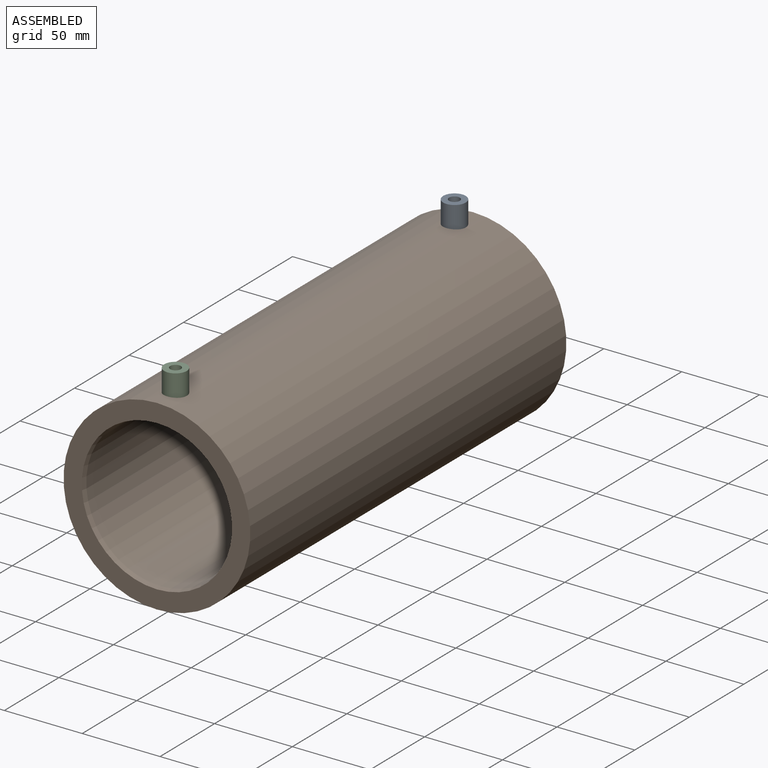
[diagram: assembled view]
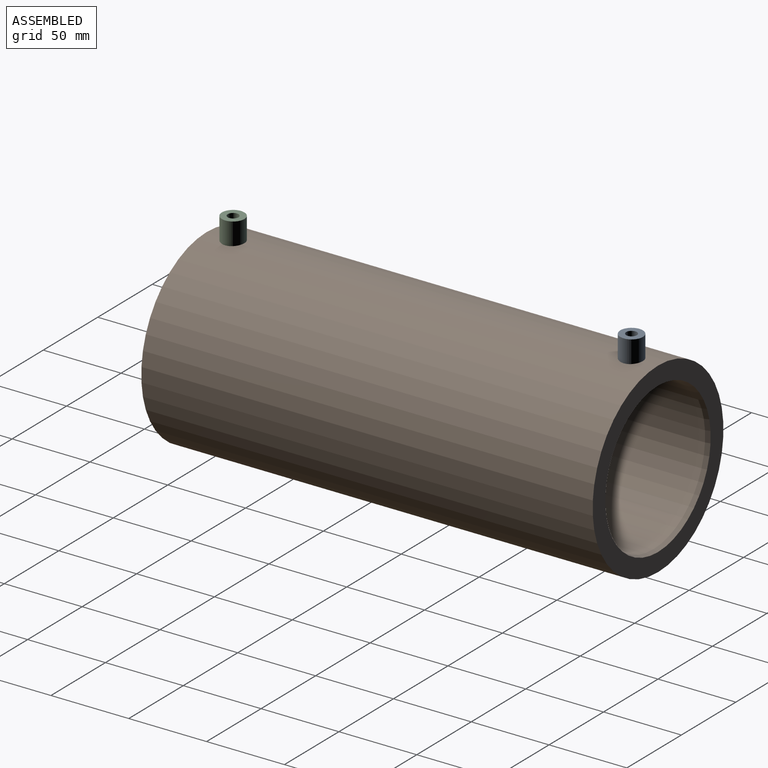
[diagram: assembled view, second angle]
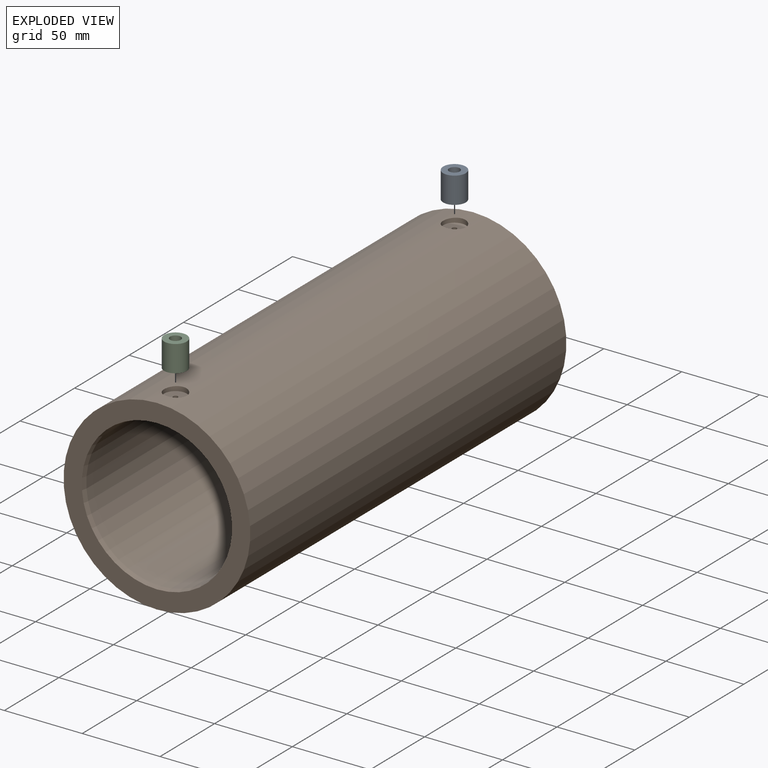
[diagram: exploded view]
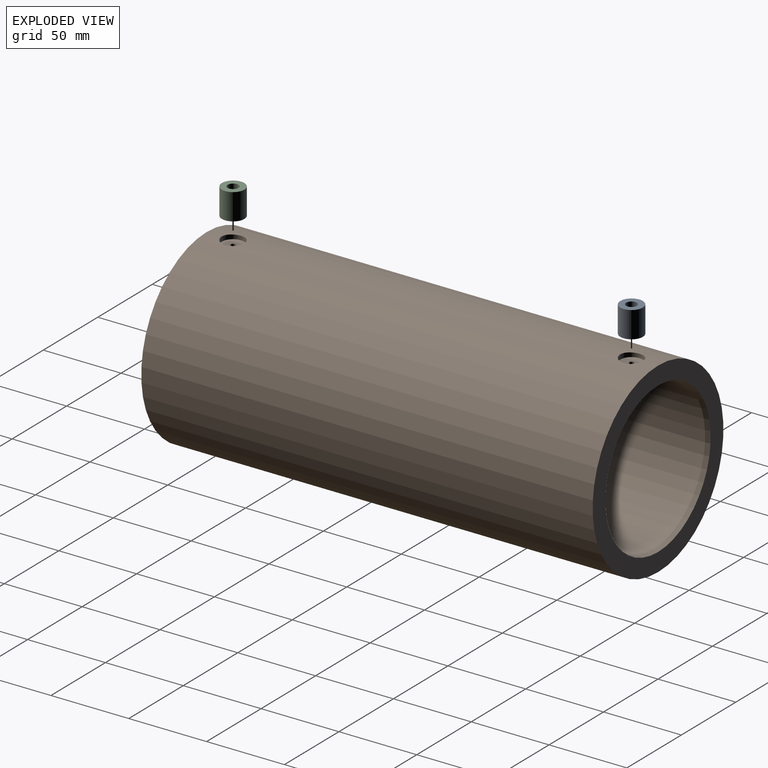
[diagram: exploded view, second angle]
ASSEMBLY  parts=3 mates=2
PART A: 4 faces, bbox 14.5x14.5x17 mm
  f0: cylinder r=7.25mm len=17mm, axis (0,0,-1), area 774.4mm2, adj f1,f2
  f1: plane 14.5x14.5mm, normal (0,0,1), area 127.6mm2, adj f0,f3
  f2: plane 14.5x14.5mm, normal (0,0,-1), area 127.6mm2, adj f0,f3
  f3: cylinder r=3.45mm len=17mm, axis (0,0,1), area 369mm2, adj f1,f2
PART B: 12 faces, bbox 120x290x120 mm
  f0: cylinder r=47.5mm len=284mm, axis (0,-1,0), area 84746mm2, adj f4,f5,f6,f9
  f1: cylinder r=60mm len=290mm, axis (0,-1,0), area 108996.8mm2, adj f2,f3,f8,f11
  f2: plane 120x120mm, normal (0,1,0), area 3979.6mm2, adj f1,f4
  f3: plane 120x120mm, normal (0,-1,0), area 3979.6mm2, adj f1,f5
  f4: cone r=48.3mm half-angle=15deg, axis (0,1,0), area 934.8mm2, adj f0,f2
  f5: cone r=47.5mm half-angle=15deg, axis (0,-1,0), area 934.8mm2, adj f0,f3
  f6: cylinder r=1.5mm len=9.52mm, axis (0,0,1), area 89.6mm2, adj f0,f7
  f7: plane 14.5x14.5mm, normal (0,0,1), area 158.1mm2, adj f6,f8
  f8: cylinder r=7.25mm len=14.5mm, axis (0,0,1), area 126.6mm2, adj f1,f7
  f9: cylinder r=1.5mm len=9.52mm, axis (0,0,1), area 89.6mm2, adj f0,f10
  f10: plane 14.5x14.5mm, normal (0,0,1), area 158.1mm2, adj f9,f11
  f11: cylinder r=7.25mm len=14.5mm, axis (0,0,1), area 126.6mm2, adj f1,f10
PART C: same geometry as A
PLACE A rot(axis=(1,0,0),180deg) t=(0,536,131)mm
PLACE B t=(0,-10,0)mm
PLACE C rot(axis=(1,0,0),180deg) t=(0,280,131)mm
MATE fastened A.f0 <-> B.f6  axis (0,0,-1) through (0,263,57)mm
MATE fastened C.f0 <-> B.f9  axis (0,0,1) through (0,7,57)mm
